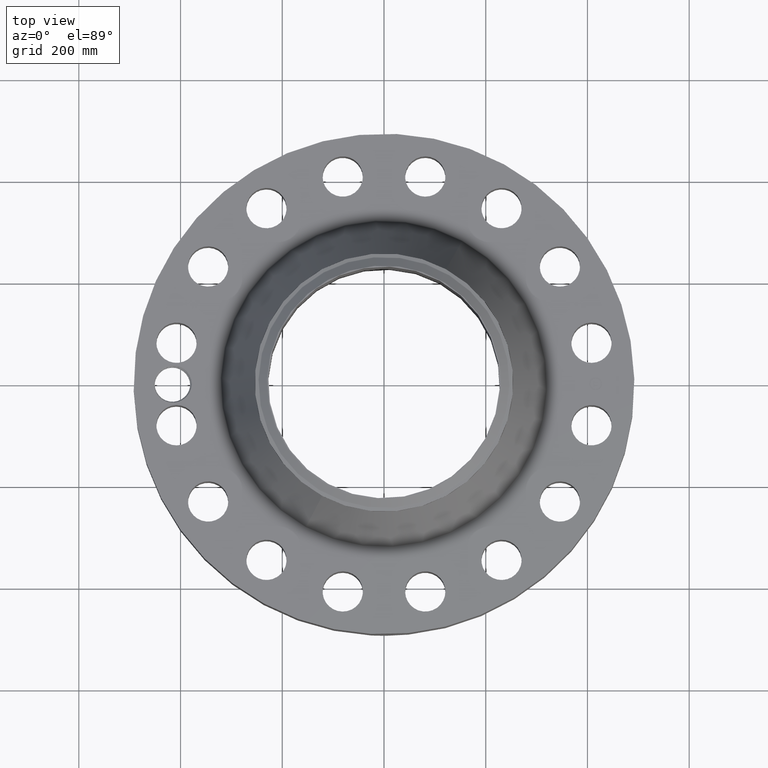
[diagram: clean part render]
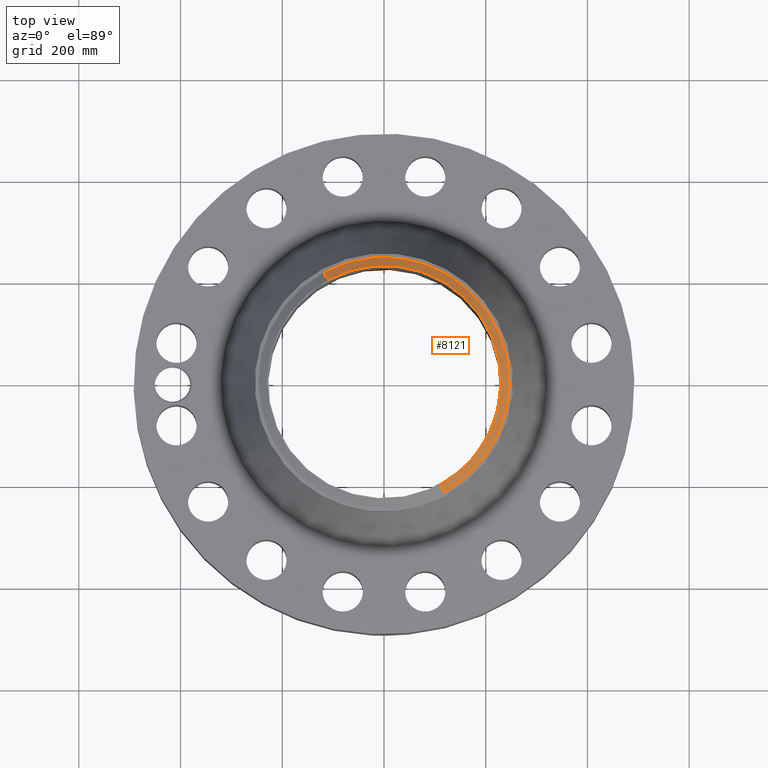
[diagram: same view with one face highlighted and labeled with its STEP entity id]
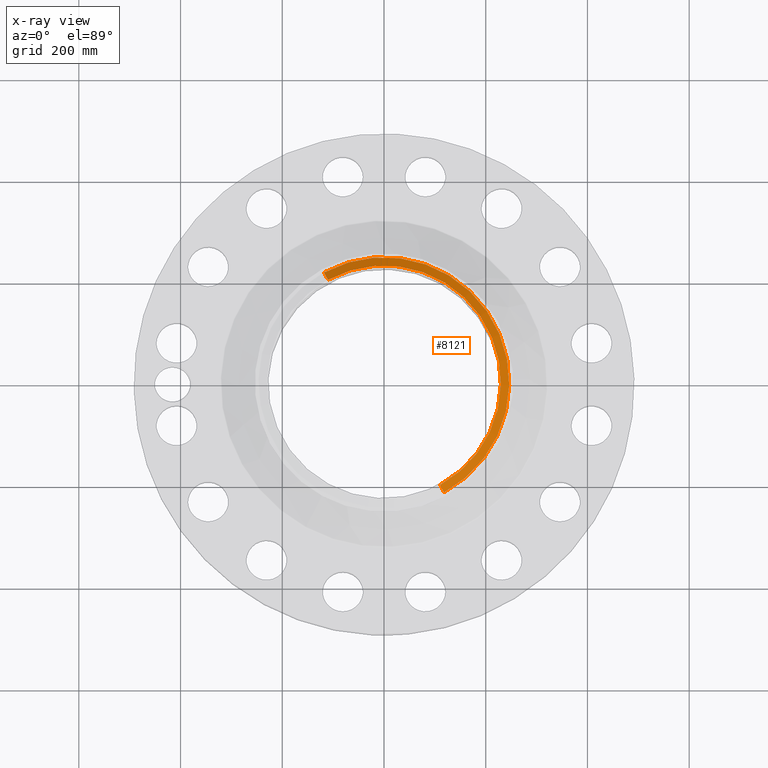
[diagram: x-ray of the same camera — body ghosted, the highlighted face saturated]
A machine part, top view. The second image highlights one B-rep face of the part: STEP entity #8121.
The next image is the same camera in x-ray: the body ghosted, the highlighted face saturated — about 0% of this face is hidden behind the body in this view.
In plain terms, the highlighted conical surface has half-angle 52.5 deg.
Its self-contained STEP definition (entity closure, byte-faithful):
#4546=AXIS2_PLACEMENT_3D('Circle Axis2P3D',#4544,#4545,$) ;
#8082=AXIS2_PLACEMENT_3D('Cone Axis2P3D',#8079,#8080,#8081) ;
#8112=AXIS2_PLACEMENT_3D('Circle Axis2P3D',#8110,#8111,$) ;
#4544=CARTESIAN_POINT('Axis2P3D Location',(0.,0.,14.2500000001)) ;
#4548=CARTESIAN_POINT('Vertex',(4.33771769817,-7.94013898675,14.2500000001)) ;
#4550=CARTESIAN_POINT('Vertex',(-4.33771769817,7.94013898675,14.2500000001)) ;
#8079=CARTESIAN_POINT('Axis2P3D Location',(0.,0.,14.2500000001)) ;
#8084=CARTESIAN_POINT('Line Origine',(-4.49265900072,8.22375713866,14.0020143726)) ;
#8088=CARTESIAN_POINT('Vertex',(-4.64760030327,8.50737529056,13.7540287452)) ;
#8095=CARTESIAN_POINT('Vertex',(4.64760030327,-8.50737529056,13.7540287452)) ;
#8098=CARTESIAN_POINT('Line Origine',(4.49265900072,-8.22375713866,14.0020143726)) ;
#8110=CARTESIAN_POINT('Axis2P3D Location',(0.,0.,13.7540287452)) ;
#4545=DIRECTION('Axis2P3D Direction',(0.,0.,-0.0393700787402)) ;
#8080=DIRECTION('Axis2P3D Direction',(-0.,-0.,-0.0393700787402)) ;
#8081=DIRECTION('Axis2P3D XDirection',(-0.0188750212049,0.0345504945626,0.)) ;
#8085=DIRECTION('Vector Direction',(-0.014974561121,0.02741075027,-0.023966985394)) ;
#8099=DIRECTION('Vector Direction',(0.014974561121,-0.02741075027,-0.023966985394)) ;
#8111=DIRECTION('Axis2P3D Direction',(0.,0.,-0.0393700787402)) ;
#8086=VECTOR('Line Direction',#8085,0.0393700787402) ;
#8100=VECTOR('Line Direction',#8099,0.0393700787402) ;
#8116=ORIENTED_EDGE('',*,*,#4552,.F.) ;
#8117=ORIENTED_EDGE('',*,*,#8102,.T.) ;
#8118=ORIENTED_EDGE('',*,*,#8114,.T.) ;
#8119=ORIENTED_EDGE('',*,*,#8090,.F.) ;
#8121=ADVANCED_FACE('PartBody',(#8120),#8083,.T.) ;
#4547=CIRCLE('generated circle',#4546,9.04774015752) ;
#8113=CIRCLE('generated circle',#8112,9.69410248106) ;
#8083=CONICAL_SURFACE('Cone',#8082,9.04774015752,0.916297857297) ;
#4552=EDGE_CURVE('',#4549,#4551,#4547,.F.) ;
#8090=EDGE_CURVE('',#4551,#8089,#8087,.T.) ;
#8102=EDGE_CURVE('',#4549,#8096,#8101,.T.) ;
#8114=EDGE_CURVE('',#8096,#8089,#8113,.F.) ;
#8115=EDGE_LOOP('',(#8116,#8117,#8118,#8119)) ;
#8120=FACE_OUTER_BOUND('',#8115,.T.) ;
#8087=LINE('Line',#8084,#8086) ;
#8101=LINE('Line',#8098,#8100) ;
#4549=VERTEX_POINT('',#4548) ;
#4551=VERTEX_POINT('',#4550) ;
#8089=VERTEX_POINT('',#8088) ;
#8096=VERTEX_POINT('',#8095) ;